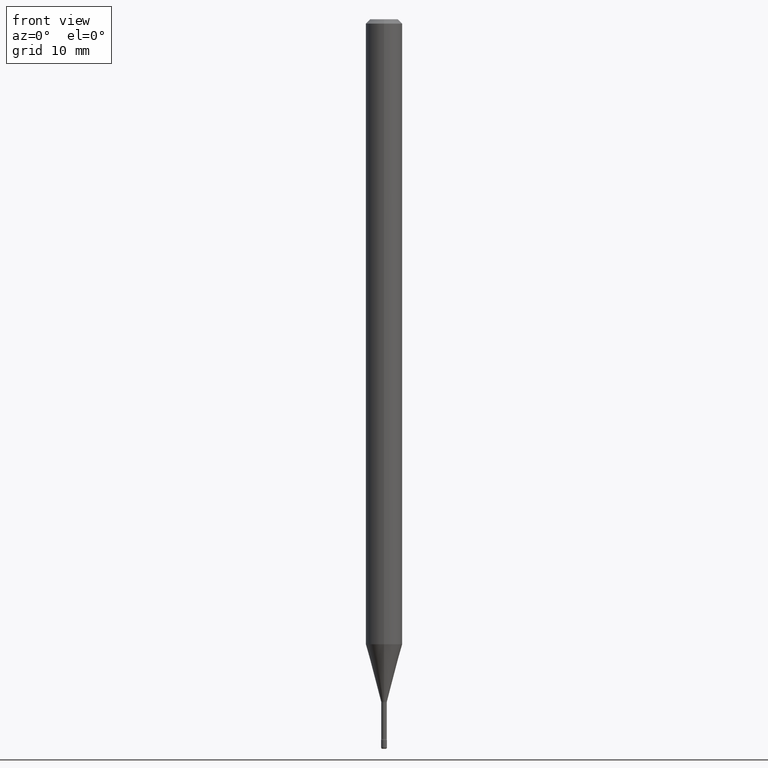
[diagram: clean part render]
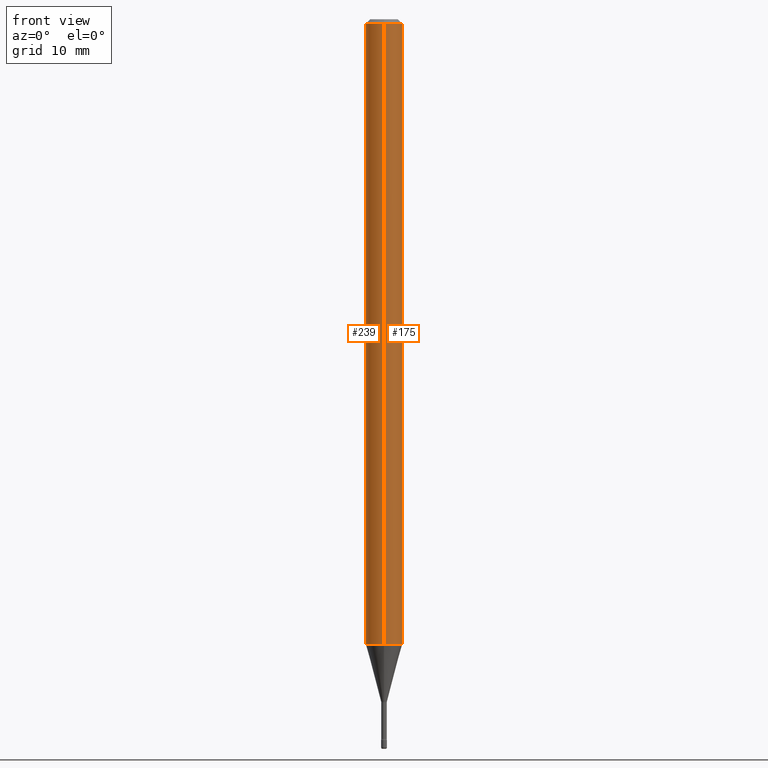
[diagram: same view with one multi-face feature highlighted, each face labeled with its STEP entity id]
A machine part, front view. The highlighted faces form ONE feature: a constant-radius fillet chain: 2 tangent blend faces with common blend radius 1.5875 mm. The faces share edges in the B-rep.
Their STEP definitions:
[1] entity #239 (Cylinder):
#12 = CARTESIAN_POINT ( 'NONE',  ( 3.668257017501394101E-31, -5.237144951825841500E-17, -0.01500000000000002720 ) ) ;
#14 = EDGE_CURVE ( 'NONE', #337, #458, #374, .T. ) ;
#19 = VECTOR ( 'NONE', #252, 39.37007874015748143 ) ;
#64 = CARTESIAN_POINT ( 'NONE',  ( 4.440892098501153712E-16, 0.06249999999999995837, -0.01500000000000024578 ) ) ;
#69 = CARTESIAN_POINT ( 'NONE',  ( -4.364351673553916201E-16, -0.06250000000000000000, 6.962877718839889979E-16 ) ) ;
#90 = DIRECTION ( 'NONE',  ( -2.445504678334258331E-29, 3.491429967883887349E-15, 1.000000000000000000 ) ) ;
#122 = EDGE_CURVE ( 'NONE', #375, #337, #325, .T. ) ;
#146 = CARTESIAN_POINT ( 'NONE',  ( 4.440892098500625669E-16, 0.06250000000000000000, 2.598590258985031286E-16 ) ) ;
#177 = FACE_OUTER_BOUND ( 'NONE', #460, .T. ) ;
#178 = DIRECTION ( 'NONE',  ( -2.445504678334258331E-29, 3.491429967883887349E-15, 1.000000000000000000 ) ) ;
#206 = DIRECTION ( 'NONE',  ( -2.445504678334258612E-29, 3.491429967883887349E-15, 1.000000000000000000 ) ) ;
#211 = ORIENTED_EDGE ( 'NONE', *, *, #14, .T. ) ;
#226 = CARTESIAN_POINT ( 'NONE',  ( -4.364351673553393088E-16, -0.06250000000000748013, -2.141828102118092936 ) ) ;
#227 = AXIS2_PLACEMENT_3D ( 'NONE', #394, #90, #489 ) ;
#235 = VECTOR ( 'NONE', #206, 39.37007874015748143 ) ;
#239 = ADVANCED_FACE ( 'NONE', ( #177 ), #353, .T. ) ;
#252 = DIRECTION ( 'NONE',  ( -2.445504678334258612E-29, 3.491429967883887349E-15, 1.000000000000000000 ) ) ;
#267 = AXIS2_PLACEMENT_3D ( 'NONE', #304, #178, #354 ) ;
#284 = LINE ( 'NONE', #146, #19 ) ;
#295 = ORIENTED_EDGE ( 'NONE', *, *, #122, .T. ) ;
#304 = CARTESIAN_POINT ( 'NONE',  ( -1.169113584055446105E-44, 1.669184350826100908E-30, 4.780733988912460139E-16 ) ) ;
#311 = DIRECTION ( 'NONE',  ( -2.445504678334258331E-29, 3.491429967883887349E-15, 1.000000000000000000 ) ) ;
#325 = CIRCLE ( 'NONE', #227, 0.06250000000000000000 ) ;
#333 = EDGE_CURVE ( 'NONE', #388, #458, #384, .T. ) ;
#334 = ORIENTED_EDGE ( 'NONE', *, *, #441, .F. ) ;
#337 = VERTEX_POINT ( 'NONE', #226 ) ;
#353 = CYLINDRICAL_SURFACE ( 'NONE', #267, 0.06250000000000000000 ) ;
#354 = DIRECTION ( 'NONE',  ( -6.982962677686265922E-15, -1.000000000000000000, 3.491429967883886954E-15 ) ) ;
#374 = LINE ( 'NONE', #69, #235 ) ;
#375 = VERTEX_POINT ( 'NONE', #497 ) ;
#384 = CIRCLE ( 'NONE', #496, 0.06250000000000000000 ) ;
#388 = VERTEX_POINT ( 'NONE', #64 ) ;
#394 = CARTESIAN_POINT ( 'NONE',  ( 5.237850643917582024E-29, -7.478042821790981492E-15, -2.141828102118093380 ) ) ;
#441 = EDGE_CURVE ( 'NONE', #375, #388, #284, .T. ) ;
#447 = DIRECTION ( 'NONE',  ( -6.982962677686265922E-15, -1.000000000000000000, 3.483106191921935554E-15 ) ) ;
#458 = VERTEX_POINT ( 'NONE', #506 ) ;
#460 = EDGE_LOOP ( 'NONE', ( #334, #295, #211, #477 ) ) ;
#477 = ORIENTED_EDGE ( 'NONE', *, *, #333, .F. ) ;
#489 = DIRECTION ( 'NONE',  ( -6.982962677686265922E-15, -1.000000000000000000, 4.370956789862821150E-15 ) ) ;
#496 = AXIS2_PLACEMENT_3D ( 'NONE', #12, #311, #447 ) ;
#497 = CARTESIAN_POINT ( 'NONE',  ( 4.440892098501147796E-16, 0.06249999999999251293, -2.141828102118093380 ) ) ;
#506 = CARTESIAN_POINT ( 'NONE',  ( -4.364351673553912750E-16, -0.06250000000000005551, -0.01499999999999981036 ) ) ;
[2] entity #175 (Cylinder):
#14 = EDGE_CURVE ( 'NONE', #337, #458, #374, .T. ) ;
#16 = ORIENTED_EDGE ( 'NONE', *, *, #14, .F. ) ;
#19 = VECTOR ( 'NONE', #252, 39.37007874015748143 ) ;
#64 = CARTESIAN_POINT ( 'NONE',  ( 4.440892098501153712E-16, 0.06249999999999995837, -0.01500000000000024578 ) ) ;
#69 = CARTESIAN_POINT ( 'NONE',  ( -4.364351673553916201E-16, -0.06250000000000000000, 6.962877718839889979E-16 ) ) ;
#74 = ORIENTED_EDGE ( 'NONE', *, *, #453, .T. ) ;
#94 = DIRECTION ( 'NONE',  ( -6.982962677686265922E-15, -1.000000000000000000, 3.483106191921935554E-15 ) ) ;
#129 = CIRCLE ( 'NONE', #339, 0.06250000000000000000 ) ;
#130 = DIRECTION ( 'NONE',  ( -6.982962677686265922E-15, -1.000000000000000000, 3.491429967883886954E-15 ) ) ;
#146 = CARTESIAN_POINT ( 'NONE',  ( 4.440892098500625669E-16, 0.06250000000000000000, 2.598590258985031286E-16 ) ) ;
#159 = EDGE_LOOP ( 'NONE', ( #74, #162, #472, #16 ) ) ;
#162 = ORIENTED_EDGE ( 'NONE', *, *, #441, .T. ) ;
#175 = ADVANCED_FACE ( 'NONE', ( #524 ), #522, .T. ) ;
#189 = CARTESIAN_POINT ( 'NONE',  ( 3.668257017501394101E-31, -5.237144951825841500E-17, -0.01500000000000002720 ) ) ;
#205 = DIRECTION ( 'NONE',  ( -6.982962677686265922E-15, -1.000000000000000000, 4.370956789862821150E-15 ) ) ;
#206 = DIRECTION ( 'NONE',  ( -2.445504678334258612E-29, 3.491429967883887349E-15, 1.000000000000000000 ) ) ;
#226 = CARTESIAN_POINT ( 'NONE',  ( -4.364351673553393088E-16, -0.06250000000000748013, -2.141828102118092936 ) ) ;
#235 = VECTOR ( 'NONE', #206, 39.37007874015748143 ) ;
#252 = DIRECTION ( 'NONE',  ( -2.445504678334258612E-29, 3.491429967883887349E-15, 1.000000000000000000 ) ) ;
#272 = AXIS2_PLACEMENT_3D ( 'NONE', #530, #572, #130 ) ;
#284 = LINE ( 'NONE', #146, #19 ) ;
#291 = DIRECTION ( 'NONE',  ( -2.445504678334258331E-29, 3.491429967883887349E-15, 1.000000000000000000 ) ) ;
#320 = DIRECTION ( 'NONE',  ( -2.445504678334258331E-29, 3.491429967883887349E-15, 1.000000000000000000 ) ) ;
#337 = VERTEX_POINT ( 'NONE', #226 ) ;
#339 = AXIS2_PLACEMENT_3D ( 'NONE', #562, #291, #205 ) ;
#374 = LINE ( 'NONE', #69, #235 ) ;
#375 = VERTEX_POINT ( 'NONE', #497 ) ;
#388 = VERTEX_POINT ( 'NONE', #64 ) ;
#405 = EDGE_CURVE ( 'NONE', #458, #388, #565, .T. ) ;
#408 = AXIS2_PLACEMENT_3D ( 'NONE', #189, #320, #94 ) ;
#441 = EDGE_CURVE ( 'NONE', #375, #388, #284, .T. ) ;
#453 = EDGE_CURVE ( 'NONE', #337, #375, #129, .T. ) ;
#458 = VERTEX_POINT ( 'NONE', #506 ) ;
#472 = ORIENTED_EDGE ( 'NONE', *, *, #405, .F. ) ;
#497 = CARTESIAN_POINT ( 'NONE',  ( 4.440892098501147796E-16, 0.06249999999999251293, -2.141828102118093380 ) ) ;
#506 = CARTESIAN_POINT ( 'NONE',  ( -4.364351673553912750E-16, -0.06250000000000005551, -0.01499999999999981036 ) ) ;
#522 = CYLINDRICAL_SURFACE ( 'NONE', #272, 0.06250000000000000000 ) ;
#524 = FACE_OUTER_BOUND ( 'NONE', #159, .T. ) ;
#530 = CARTESIAN_POINT ( 'NONE',  ( -1.169113584055446105E-44, 1.669184350826100908E-30, 4.780733988912460139E-16 ) ) ;
#562 = CARTESIAN_POINT ( 'NONE',  ( 5.237850643917582024E-29, -7.478042821790981492E-15, -2.141828102118093380 ) ) ;
#565 = CIRCLE ( 'NONE', #408, 0.06250000000000000000 ) ;
#572 = DIRECTION ( 'NONE',  ( -2.445504678334258331E-29, 3.491429967883887349E-15, 1.000000000000000000 ) ) ;